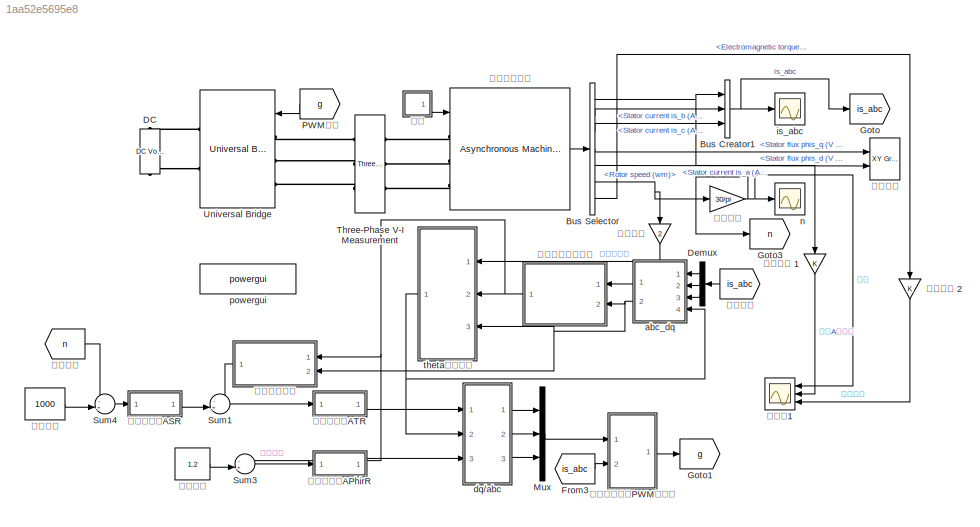
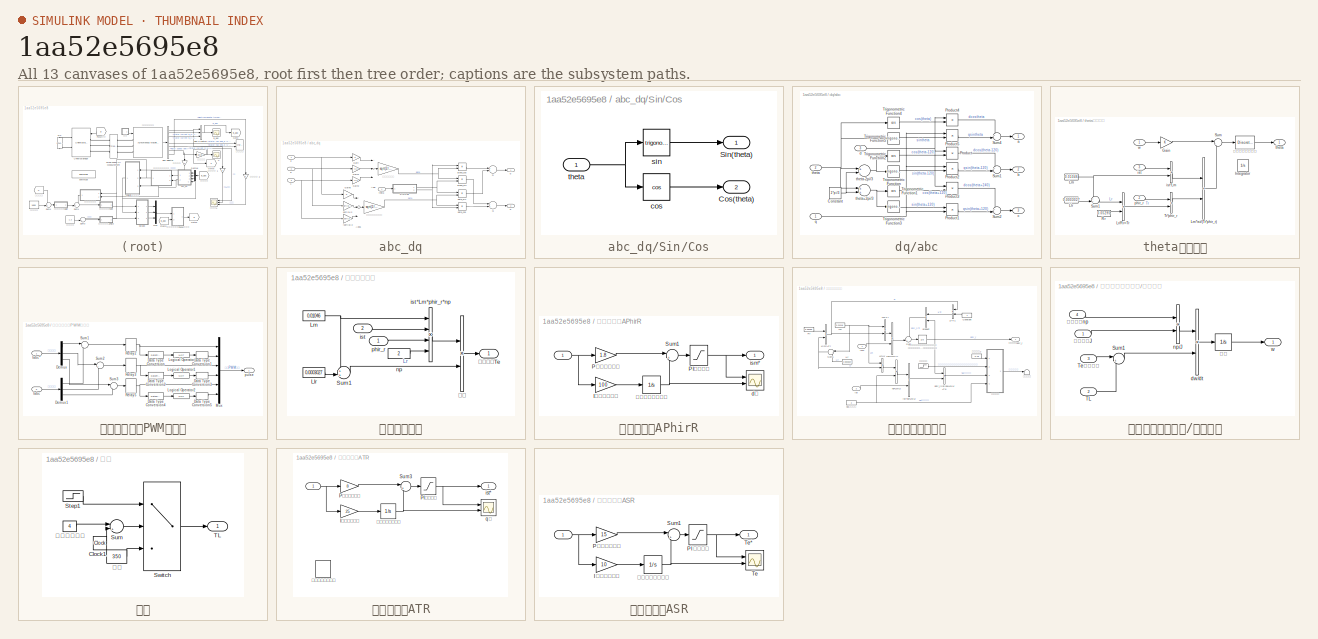
[diagram: thumbnail index - all 13 canvases of the model, root first then tree order]
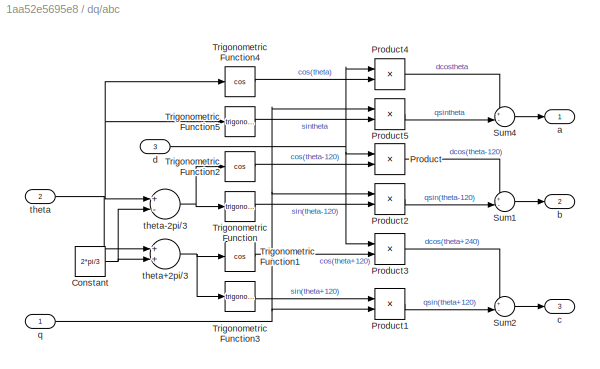
MODEL slx_1aa52e5695e8
KIND model
CONFIG AbsTol = auto
CONFIG EnableMultiTasking = off
CONFIG FixedStep = auto
CONFIG MaxStep = 1e-4
CONFIG MinStep = auto
CONFIG RelTol = 1e-3
CONFIG SampleTimeConstraint = Unconstrained
CONFIG Solver = ode23tb
CONFIG SolverName = ode23tb
CONFIG StartTime = 0.0
CONFIG StopTime = 6
BLOCK [BusCreator] Bus Creator1
  DisplayOption = bar
  InheritFromInputs = on
  Inputs = 3
  Ports = [3, 1]
BLOCK [BusSelector] Bus Selector
  OutputAsBus = off
  OutputSignals = Stator measurements.Stator current is_a (A),Stator measurements.Stator current is_b (A),Stator measurements.Stator current is_c (A),Stator measurements.Stator flux phis_q (V s),Stator measurements.Stator flux phis_d (V s),Mechanical.Rotor speed (wm),Mechanical.Electromagnetic torque Te (N*m)
  Ports = [1, 7]
BLOCK [Reference] DC  REF=powerlib/Electrical
Sources/DC Voltage Source
  Ports = [0, 0, 0, 0, 0, 1, 1]
  SourceBlock = powerlib/Electrical\nSources/DC Voltage Source
  SourceProductBaseCode = PS
  SourceProductName = Simscape Power Systems
  SourceType = DC Voltage Source
BLOCK [Demux] Demux
  DisplayOption = bar
  Outputs = 3
  Ports = [1, 3]
BLOCK [From] From3
  GotoTag = is_abc
BLOCK [Goto] Goto
  GotoTag = is_abc
BLOCK [Goto] Goto1
  GotoTag = g
BLOCK [Goto] Goto3
  GotoTag = n
BLOCK [Mux] Mux
  DisplayOption = bar
  Inputs = 3
  Ports = [3, 1]
BLOCK [From] PWM信号
  GotoTag = g
BLOCK [Sum] Sum1
  IconShape = round
  InputSameDT = off
  Inputs = -+|
  OutDataTypeStr = Inherit: Inherit via internal rule
  Ports = [2, 1]
  SaturateOnIntegerOverflow = off
BLOCK [Sum] Sum3
  IconShape = round
  InputSameDT = off
  Inputs = -+|
  OutDataTypeStr = Inherit: Inherit via internal rule
  Ports = [2, 1]
  SaturateOnIntegerOverflow = off
BLOCK [Sum] Sum4
  IconShape = round
  InputSameDT = off
  Inputs = -+|
  OutDataTypeStr = Inherit: Inherit via internal rule
  Ports = [2, 1]
  SaturateOnIntegerOverflow = off
BLOCK [Reference] Three-Phase V-I Measurement  REF=powerlib/Measurements/Three-Phase
V-I Measurement
  Ports = [0, 0, 0, 0, 0, 3, 3]
  SourceBlock = powerlib/Measurements/Three-Phase\nV-I Measurement
  SourceProductBaseCode = PS
  SourceProductName = Simscape Power Systems
  SourceType = Three-Phase VI Measurement
BLOCK [Reference] Universal Bridge  REF=powerlib/Power
Electronics/Universal Bridge
  Ports = [1, 0, 0, 0, 0, 3, 2]
  SourceBlock = powerlib/Power\nElectronics/Universal Bridge
  SourceProductBaseCode = PS
  SourceProductName = Simscape Power Systems
  SourceType = Universal Bridge
BLOCK [SubSystem] abc_dq
  Ports = [4, 2]
  RequestExecContextInheritance = off
  Variant = off
BLOCK [Gain] abc_dq/-sqrt(3)//2
  Gain = -sqrt(3)/2
  OutDataTypeStr = Inherit: Inherit via internal rule
  ParamDataTypeStr = Inherit: Inherit via internal rule
  SaturateOnIntegerOverflow = off
BLOCK [Sum] abc_dq/Add
  InputSameDT = off
  Inputs = 3
  OutDataTypeStr = Inherit: Inherit via internal rule
  Ports = [3, 1]
  SaturateOnIntegerOverflow = off
BLOCK [Sum] abc_dq/Add1
  InputSameDT = off
  Inputs = 3
  OutDataTypeStr = Inherit: Inherit via internal rule
  Ports = [3, 1]
  SaturateOnIntegerOverflow = off
BLOCK [Sum] abc_dq/D
  InputSameDT = off
  OutDataTypeStr = Inherit: Inherit via internal rule
  Ports = [2, 1]
  SaturateOnIntegerOverflow = off
BLOCK [Gain] abc_dq/Gain
  OutDataTypeStr = Inherit: Inherit via internal rule
  ParamDataTypeStr = Inherit: Inherit via internal rule
  SaturateOnIntegerOverflow = off
BLOCK [Gain] abc_dq/Gain1
  Gain = -0.5
  OutDataTypeStr = Inherit: Inherit via internal rule
  ParamDataTypeStr = Inherit: Inherit via internal rule
  SaturateOnIntegerOverflow = off
BLOCK [Gain] abc_dq/Gain2
  Gain = -0.5
  OutDataTypeStr = Inherit: Inherit via internal rule
  ParamDataTypeStr = Inherit: Inherit via internal rule
  SaturateOnIntegerOverflow = off
BLOCK [Gain] abc_dq/Gain5
  Gain = 0
  OutDataTypeStr = Inherit: Inherit via internal rule
  ParamDataTypeStr = Inherit: Inherit via internal rule
  SaturateOnIntegerOverflow = off
BLOCK [Sum] abc_dq/Q
  InputSameDT = off
  Inputs = -+
  OutDataTypeStr = Inherit: Inherit via internal rule
  Ports = [2, 1]
  SaturateOnIntegerOverflow = off
BLOCK [SubSystem] abc_dq/Sin//Cos
  Ports = [1, 2]
  RequestExecContextInheritance = off
  Variant = off
BLOCK [Outport] abc_dq/Sin//Cos/Cos(theta)
  IconDisplay = Port number
  Port = 2
BLOCK [Outport] abc_dq/Sin//Cos/Sin(theta)
  IconDisplay = Port number
BLOCK [Trigonometry] abc_dq/Sin//Cos/cos
  Operator = cos
  Ports = [1, 1]
BLOCK [Trigonometry] abc_dq/Sin//Cos/sin
  Ports = [1, 1]
BLOCK [Inport] abc_dq/Sin//Cos/theta
  IconDisplay = Port number
BLOCK [Inport] abc_dq/a
  IconDisplay = Port number
BLOCK [Product] abc_dq/alpha_cos
  InputSameDT = off
  OutDataTypeStr = Inherit: Inherit via internal rule
  Ports = [2, 1]
  RndMeth = Floor
  SaturateOnIntegerOverflow = off
BLOCK [Product] abc_dq/alpha_sin
  InputSameDT = off
  OutDataTypeStr = Inherit: Inherit via internal rule
  Ports = [2, 1]
  RndMeth = Floor
  SaturateOnIntegerOverflow = off
BLOCK [Inport] abc_dq/b
  IconDisplay = Port number
  Port = 2
BLOCK [Product] abc_dq/beta_cos
  InputSameDT = off
  OutDataTypeStr = Inherit: Inherit via internal rule
  Ports = [2, 1]
  RndMeth = Floor
  SaturateOnIntegerOverflow = off
BLOCK [Product] abc_dq/beta_sin
  InputSameDT = off
  OutDataTypeStr = Inherit: Inherit via internal rule
  Ports = [2, 1]
  RndMeth = Floor
  SaturateOnIntegerOverflow = off
BLOCK [Inport] abc_dq/c
  IconDisplay = Port number
  Port = 3
BLOCK [Outport] abc_dq/d
  IconDisplay = Port number
BLOCK [Outport] abc_dq/q
  IconDisplay = Port number
  Port = 2
BLOCK [Gain] abc_dq/sqrt(3)//2
  Gain = sqrt(3)/2
  OutDataTypeStr = Inherit: Inherit via internal rule
  ParamDataTypeStr = Inherit: Inherit via internal rule
  SaturateOnIntegerOverflow = off
BLOCK [Inport] abc_dq/theta
  IconDisplay = Port number
  Port = 4
BLOCK [Gain] abc_dq/功率不变保持系数
  Gain = sqrt(2/3)
  OutDataTypeStr = Inherit: Inherit via internal rule
  ParamDataTypeStr = Inherit: Inherit via internal rule
  SaturateOnIntegerOverflow = off
BLOCK [Gain] abc_dq/功率保持系数
  Gain = sqrt(2/3)
  OutDataTypeStr = Inherit: Inherit via internal rule
  ParamDataTypeStr = Inherit: Inherit via internal rule
  SaturateOnIntegerOverflow = off
BLOCK [SubSystem] dq//abc
  Ports = [3, 3]
  RequestExecContextInheritance = off
  Variant = off
BLOCK [Constant] dq//abc/Constant
  Value = 2*pi/3
BLOCK [Product] dq//abc/Product
  InputSameDT = off
  OutDataTypeStr = Inherit: Inherit via internal rule
  Ports = [2, 1]
  RndMeth = Floor
  SaturateOnIntegerOverflow = off
BLOCK [Product] dq//abc/Product1
  InputSameDT = off
  OutDataTypeStr = Inherit: Inherit via internal rule
  Ports = [2, 1]
  RndMeth = Floor
  SaturateOnIntegerOverflow = off
BLOCK [Product] dq//abc/Product2
  InputSameDT = off
  OutDataTypeStr = Inherit: Inherit via internal rule
  Ports = [2, 1]
  RndMeth = Floor
  SaturateOnIntegerOverflow = off
BLOCK [Product] dq//abc/Product3
  InputSameDT = off
  OutDataTypeStr = Inherit: Inherit via internal rule
  Ports = [2, 1]
  RndMeth = Floor
  SaturateOnIntegerOverflow = off
BLOCK [Product] dq//abc/Product4
  InputSameDT = off
  OutDataTypeStr = Inherit: Inherit via internal rule
  Ports = [2, 1]
  RndMeth = Floor
  SaturateOnIntegerOverflow = off
BLOCK [Product] dq//abc/Product5
  InputSameDT = off
  OutDataTypeStr = Inherit: Inherit via internal rule
  Ports = [2, 1]
  RndMeth = Floor
  SaturateOnIntegerOverflow = off
BLOCK [Sum] dq//abc/Sum1
  IconShape = round
  InputSameDT = off
  Inputs = +-|
  OutDataTypeStr = Inherit: Inherit via internal rule
  Ports = [2, 1]
  SaturateOnIntegerOverflow = off
BLOCK [Sum] dq//abc/Sum2
  IconShape = round
  InputSameDT = off
  Inputs = +-|
  OutDataTypeStr = Inherit: Inherit via internal rule
  Ports = [2, 1]
  SaturateOnIntegerOverflow = off
BLOCK [Sum] dq//abc/Sum4
  IconShape = round
  InputSameDT = off
  Inputs = +-|
  OutDataTypeStr = Inherit: Inherit via internal rule
  Ports = [2, 1]
  SaturateOnIntegerOverflow = off
BLOCK [Trigonometry] dq//abc/Trigonometric Function
  Ports = [1, 1]
BLOCK [Trigonometry] dq//abc/Trigonometric Function1
  Operator = cos
  Ports = [1, 1]
BLOCK [Trigonometry] dq//abc/Trigonometric Function2
  Operator = cos
  Ports = [1, 1]
BLOCK [Trigonometry] dq//abc/Trigonometric Function3
  Ports = [1, 1]
BLOCK [Trigonometry] dq//abc/Trigonometric Function4
  Operator = cos
  Ports = [1, 1]
BLOCK [Trigonometry] dq//abc/Trigonometric Function5
  Ports = [1, 1]
BLOCK [Outport] dq//abc/a
  IconDisplay = Port number
BLOCK [Outport] dq//abc/b
  IconDisplay = Port number
  Port = 2
BLOCK [Outport] dq//abc/c
  IconDisplay = Port number
  Port = 3
BLOCK [Inport] dq//abc/d
  IconDisplay = Port number
  Port = 3
BLOCK [Inport] dq//abc/q
  IconDisplay = Port number
BLOCK [Inport] dq//abc/theta
  IconDisplay = Port number
  Port = 2
BLOCK [Sum] dq//abc/theta+2pi//3
  InputSameDT = off
  OutDataTypeStr = Inherit: Inherit via internal rule
  Ports = [2, 1]
  SaturateOnIntegerOverflow = off
BLOCK [Sum] dq//abc/theta-2pi//3
  InputSameDT = off
  Inputs = +-
  OutDataTypeStr = Inherit: Inherit via internal rule
  Ports = [2, 1]
  SaturateOnIntegerOverflow = off
BLOCK [Scope] is_abc
  NumInputPorts = 1
  Ports = [1]
  ScopeSpecificationString = Simulink.scopes.TimeScopeBlockCfg('CurrentConfiguration', extmgr.ConfigurationSet(extmgr.Configuration('Core','General UI',true),extmgr.Configuration('Core','Source UI',true),extmgr.Configuration('Sources','WiredSimulink',true,'DataLoggingVariableName','ScopeData1'),extmgr.Configuration('Visuals','Time Domain',true,'SerializedDisplays',{struct('MinYLimReal','-1877.92315','MaxYLimReal','1877.79007'...<+1557ch>
BLOCK [Scope] n
  NumInputPorts = 1
  Ports = [1]
  ScopeSpecificationString = Simulink.scopes.TimeScopeBlockCfg('CurrentConfiguration', extmgr.ConfigurationSet(extmgr.Configuration('Core','General UI',true,'FigureColor',[1 1 1]),extmgr.Configuration('Core','Source UI',true),extmgr.Configuration('Sources','WiredSimulink',true,'DataLoggingVariableName','ScopeData2'),extmgr.Configuration('Visuals','Time Domain',true,'SerializedDisplays',{struct('MinYLimReal','-129.38086','MaxY...<+1875ch>
BLOCK [Reference] powergui  REF=powerlib/powergui
  Ports = []
  SourceBlock = powerlib/powergui
  SourceProductBaseCode = PS
  SourceProductName = Simscape Power Systems
  SourceType = PSB option menu block
BLOCK [SubSystem] theta计算模型
  Ports = [3, 1]
  RequestExecContextInheritance = off
  Variant = off
BLOCK [Gain] theta计算模型/Gain
  OutDataTypeStr = Inherit: Inherit via internal rule
  ParamDataTypeStr = Inherit: Inherit via internal rule
  SaturateOnIntegerOverflow = off
BLOCK [Integrator] theta计算模型/Integrator
  Ports = [1, 1]
BLOCK [Constant] theta计算模型/Llr
  Value = 0.0003027
BLOCK [Constant] theta计算模型/Lm
  Value = 0.01046
BLOCK [Product] theta计算模型/Lm*ist//(Tr*phir_r)
  InputSameDT = off
  Inputs = */
  OutDataTypeStr = Inherit: Inherit via internal rule
  Ports = [2, 1]
  RndMeth = Floor
  SaturateOnIntegerOverflow = off
BLOCK [Product] theta计算模型/Lr//Rr=Tr
  InputSameDT = off
  Inputs = */
  OutDataTypeStr = Inherit: Inherit via internal rule
  Ports = [2, 1]
  RndMeth = Floor
  SaturateOnIntegerOverflow = off
BLOCK [Constant] theta计算模型/Rr
  Value = 0.05295
BLOCK [Sum] theta计算模型/Sum
  IconShape = round
  InputSameDT = off
  Inputs = |++
  OutDataTypeStr = Inherit: Inherit via internal rule
  Ports = [2, 1]
  SaturateOnIntegerOverflow = off
BLOCK [Sum] theta计算模型/Sum1
  IconShape = round
  InputSameDT = off
  Inputs = ++|
  OutDataTypeStr = Inherit: Inherit via internal rule
  Ports = [2, 1]
  SaturateOnIntegerOverflow = off
BLOCK [Product] theta计算模型/Tr*phir_r
  InputSameDT = off
  OutDataTypeStr = Inherit: Inherit via internal rule
  Ports = [2, 1]
  RndMeth = Floor
  SaturateOnIntegerOverflow = off
BLOCK [Inport] theta计算模型/ist
  IconDisplay = Port number
  Port = 3
BLOCK [Product] theta计算模型/ist*Lm
  InputSameDT = off
  OutDataTypeStr = Inherit: Inherit via internal rule
  Ports = [2, 1]
  RndMeth = Floor
  SaturateOnIntegerOverflow = off
BLOCK [Inport] theta计算模型/phir_r
  IconDisplay = Port number
  Port = 2
BLOCK [Outport] theta计算模型/theta
  IconDisplay = Port number
BLOCK [Inport] theta计算模型/w
  IconDisplay = Port number
BLOCK [DiscreteIntegrator] theta计算模型/带限幅的离散积分
  ICPrevOutput = DiscIntNeverNeededParam
  ICPrevScaledInput = DiscIntNeverNeededParam
  IntegratorMethod = Integration: Trapezoidal
  LimitOutput = on
  LowerSaturationLimit = -3000
  Ports = [1, 1]
  SampleTime = 2e-5
  UpperSaturationLimit = 3000
BLOCK [From] 定子电流
  GotoTag = is_abc
BLOCK [From] 实际转速
  GotoTag = n
BLOCK [Reference] 异步钻井电机  REF=powerlib/Machines/Asynchronous Machine
SI Units
  Ports = [1, 1, 0, 0, 0, 3]
  SourceBlock = powerlib/Machines/Asynchronous Machine\nSI Units
  SourceProductBaseCode = PS
  SourceProductName = Simscape Power Systems
  SourceType = Asynchronous Machine
BLOCK [SubSystem] 电流滞环跟踪PWM发生器
  Ports = [2, 1]
  RequestExecContextInheritance = off
  Variant = off
BLOCK [DataTypeConversion] 电流滞环跟踪PWM发生器/Data Type Conversion
  RndMeth = Floor
  SaturateOnIntegerOverflow = off
BLOCK [DataTypeConversion] 电流滞环跟踪PWM发生器/Data Type Conversion1
  RndMeth = Floor
  SaturateOnIntegerOverflow = off
BLOCK [DataTypeConversion] 电流滞环跟踪PWM发生器/Data Type Conversion2
  RndMeth = Floor
  SaturateOnIntegerOverflow = off
BLOCK [DataTypeConversion] 电流滞环跟踪PWM发生器/Data Type Conversion3
  RndMeth = Floor
  SaturateOnIntegerOverflow = off
BLOCK [DataTypeConversion] 电流滞环跟踪PWM发生器/Data Type Conversion4
  RndMeth = Floor
  SaturateOnIntegerOverflow = off
BLOCK [DataTypeConversion] 电流滞环跟踪PWM发生器/Data Type Conversion5
  RndMeth = Floor
  SaturateOnIntegerOverflow = off
BLOCK [Demux] 电流滞环跟踪PWM发生器/Demux
  DisplayOption = bar
  Outputs = 3
  Ports = [1, 3]
BLOCK [Demux] 电流滞环跟踪PWM发生器/Demux1
  DisplayOption = bar
  Outputs = 3
  Ports = [1, 3]
BLOCK [Inport] 电流滞环跟踪PWM发生器/Iabc
  IconDisplay = Port number
  Port = 2
BLOCK [Inport] 电流滞环跟踪PWM发生器/Iabc*
  IconDisplay = Port number
BLOCK [Logic] 电流滞环跟踪PWM发生器/Logical Operator
  AllPortsSameDT = off
  Inputs = 1
  Operator = NOT
  Ports = [1, 1]
BLOCK [Logic] 电流滞环跟踪PWM发生器/Logical Operator1
  AllPortsSameDT = off
  Inputs = 1
  Operator = NOT
  Ports = [1, 1]
BLOCK [Logic] 电流滞环跟踪PWM发生器/Logical Operator2
  AllPortsSameDT = off
  Inputs = 1
  Operator = NOT
  Ports = [1, 1]
BLOCK [Mux] 电流滞环跟踪PWM发生器/Mux
  DisplayOption = bar
  Inputs = 6
  Ports = [6, 1]
BLOCK [Relay] 电流滞环跟踪PWM发生器/Relay2
  OffSwitchValue = -0.2
  OnSwitchValue = 0.2
  ZeroCross = off
BLOCK [Relay] 电流滞环跟踪PWM发生器/Relay3
  OffSwitchValue = -0.2
  OnSwitchValue = 0.2
  ZeroCross = off
BLOCK [Relay] 电流滞环跟踪PWM发生器/Relay5
  OffSwitchValue = -0.2
  OnSwitchValue = 0.2
  ZeroCross = off
BLOCK [Sum] 电流滞环跟踪PWM发生器/Sum1
  IconShape = round
  InputSameDT = off
  Inputs = |+-
  OutDataTypeStr = Inherit: Inherit via internal rule
  Ports = [2, 1]
  SaturateOnIntegerOverflow = off
BLOCK [Sum] 电流滞环跟踪PWM发生器/Sum2
  IconShape = round
  InputSameDT = off
  Inputs = |+-
  OutDataTypeStr = Inherit: Inherit via internal rule
  Ports = [2, 1]
  SaturateOnIntegerOverflow = off
BLOCK [Sum] 电流滞环跟踪PWM发生器/Sum3
  IconShape = round
  InputSameDT = off
  Inputs = |+-
  OutDataTypeStr = Inherit: Inherit via internal rule
  Ports = [2, 1]
  SaturateOnIntegerOverflow = off
BLOCK [Outport] 电流滞环跟踪PWM发生器/pulse
  IconDisplay = Port number
BLOCK [SubSystem] 电磁转矩计算
  Ports = [2, 1]
  RequestExecContextInheritance = off
  Variant = off
BLOCK [Constant] 电磁转矩计算/Llr
  Value = 0.0003027
BLOCK [Constant] 电磁转矩计算/Lm
  Value = 0.01046
BLOCK [Sum] 电磁转矩计算/Sum1
  IconShape = round
  InputSameDT = off
  Inputs = ++|
  OutDataTypeStr = Inherit: Inherit via internal rule
  Ports = [2, 1]
  SaturateOnIntegerOverflow = off
BLOCK [Inport] 电磁转矩计算/ist
  IconDisplay = Port number
  Port = 2
BLOCK [Product] 电磁转矩计算/ist*Lm*phir_r*np
  InputSameDT = off
  Inputs = 4
  OutDataTypeStr = Inherit: Inherit via internal rule
  Ports = [4, 1]
  RndMeth = Floor
  SaturateOnIntegerOverflow = off
BLOCK [Constant] 电磁转矩计算/np
  Value = 2
BLOCK [Inport] 电磁转矩计算/phir_r
  IconDisplay = Port number
BLOCK [Outport] 电磁转矩计算/电磁转矩Te
  IconDisplay = Port number
BLOCK [Product] 电磁转矩计算/除法
  InputSameDT = off
  Inputs = */
  OutDataTypeStr = Inherit: Inherit via internal rule
  Ports = [2, 1]
  RndMeth = Floor
  SaturateOnIntegerOverflow = off
BLOCK [Reference] 磁链观测  REF=simulink/Sinks/XY Graph
  Ports = [2]
  SourceBlock = simulink/Sinks/XY Graph
  SourceProductBaseCode = SL
  SourceProductName = Simulink
  SourceType = XY scope.
BLOCK [SubSystem] 磁链调节器APhirR
  Ports = [1, 1]
  RequestExecContextInheritance = off
  Variant = off
BLOCK [Inport] 磁链调节器APhirR/ 
  IconDisplay = Port number
BLOCK [Gain] 磁链调节器APhirR/I积分放大倍数
  Gain = 100
  OutDataTypeStr = Inherit: Inherit via internal rule
  ParamDataTypeStr = Inherit: Inherit via internal rule
  SaturateOnIntegerOverflow = off
BLOCK [Saturate] 磁链调节器APhirR/PI输出限幅
  InputPortMap = u0
  LowerLimit = -1300
  Ports = [1, 1]
  UpperLimit = 1300
BLOCK [Gain] 磁链调节器APhirR/P比例放大倍数
  Gain = 1.8
  OutDataTypeStr = Inherit: Inherit via internal rule
  ParamDataTypeStr = Inherit: Inherit via internal rule
  SaturateOnIntegerOverflow = off
BLOCK [Sum] 磁链调节器APhirR/Sum1
  IconShape = round
  InputSameDT = off
  Inputs = |++
  OutDataTypeStr = Inherit: Inherit via internal rule
  Ports = [2, 1]
  SaturateOnIntegerOverflow = off
BLOCK [Scope] 磁链调节器APhirR/d轴
  NumInputPorts = 2
  Ports = [2]
  ScopeSpecificationString = Simulink.scopes.TimeScopeBlockCfg('CurrentConfiguration', extmgr.ConfigurationSet(extmgr.Configuration('Core','General UI',true),extmgr.Configuration('Core','Source UI',true),extmgr.Configuration('Sources','WiredSimulink',true,'DataLoggingVariableName','ScopeData3'),extmgr.Configuration('Visuals','Time Domain',true,'SerializedDisplays',{struct('MinYLimReal','-1.62049','MaxYLimReal','14.58444','YLa...<+1408ch>
BLOCK [Outport] 磁链调节器APhirR/ism*
  IconDisplay = Port number
BLOCK [Integrator] 磁链调节器APhirR/带限幅的连续积分
  LimitOutput = on
  LowerSaturationLimit = -1500
  Ports = [1, 1]
  UpperSaturationLimit = 1500
BLOCK [Scope] 示波器1
  NumInputPorts = 3
  Ports = [3]
  ScopeSpecificationString = Simulink.scopes.TimeScopeBlockCfg('CurrentConfiguration', extmgr.ConfigurationSet(extmgr.Configuration('Core','General UI',true,'FigureColor',[1 1 1]),extmgr.Configuration('Core','Source UI',true),extmgr.Configuration('Sources','WiredSimulink',true,'DataLoggingVariableName','ScopeData3'),extmgr.Configuration('Visuals','Time Domain',true,'SerializedDisplays',{struct('MinYLimReal','-194.24582','MaxY...<+3221ch>
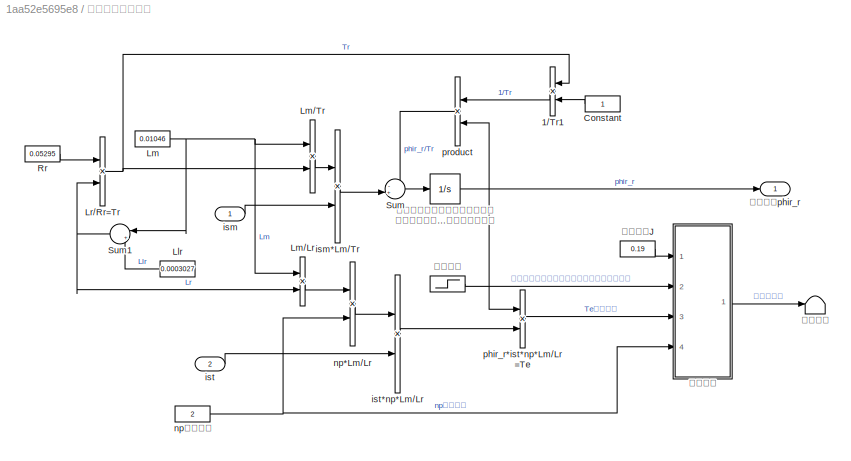
BLOCK [SubSystem] 等效直流电机模型
  Ports = [2, 1]
  RequestExecContextInheritance = off
  Variant = off
BLOCK [Product] 等效直流电机模型/1//Tr1
  InputSameDT = off
  Inputs = /*
  OutDataTypeStr = Inherit: Inherit via internal rule
  Ports = [2, 1]
  RndMeth = Floor
  SaturateOnIntegerOverflow = off
BLOCK [Constant] 等效直流电机模型/Constant
BLOCK [Constant] 等效直流电机模型/Llr
  Value = 0.0003027
BLOCK [Constant] 等效直流电机模型/Lm
  Value = 0.01046
BLOCK [Product] 等效直流电机模型/Lm//Lr
  InputSameDT = off
  Inputs = */
  OutDataTypeStr = Inherit: Inherit via internal rule
  Ports = [2, 1]
  RndMeth = Floor
  SaturateOnIntegerOverflow = off
BLOCK [Product] 等效直流电机模型/Lm//Tr
  InputSameDT = off
  Inputs = */
  OutDataTypeStr = Inherit: Inherit via internal rule
  Ports = [2, 1]
  RndMeth = Floor
  SaturateOnIntegerOverflow = off
BLOCK [Product] 等效直流电机模型/Lr//Rr=Tr
  InputSameDT = off
  Inputs = /*
  OutDataTypeStr = Inherit: Inherit via internal rule
  Ports = [2, 1]
  RndMeth = Floor
  SaturateOnIntegerOverflow = off
BLOCK [Constant] 等效直流电机模型/Rr
  Value = 0.05295
BLOCK [Sum] 等效直流电机模型/Sum
  IconShape = round
  InputSameDT = off
  Inputs = -+|
  OutDataTypeStr = Inherit: Inherit via internal rule
  Ports = [2, 1]
  SaturateOnIntegerOverflow = off
BLOCK [Sum] 等效直流电机模型/Sum1
  IconShape = round
  InputSameDT = off
  Inputs = |++
  OutDataTypeStr = Inherit: Inherit via internal rule
  Ports = [2, 1]
  SaturateOnIntegerOverflow = off
BLOCK [Inport] 等效直流电机模型/ism
  IconDisplay = Port number
BLOCK [Product] 等效直流电机模型/ism*Lm//Tr
  InputSameDT = off
  OutDataTypeStr = Inherit: Inherit via internal rule
  Ports = [2, 1]
  RndMeth = Floor
  SaturateOnIntegerOverflow = off
BLOCK [Inport] 等效直流电机模型/ist
  IconDisplay = Port number
  Port = 2
BLOCK [Product] 等效直流电机模型/ist*np*Lm//Lr
  InputSameDT = off
  OutDataTypeStr = Inherit: Inherit via internal rule
  Ports = [2, 1]
  RndMeth = Floor
  SaturateOnIntegerOverflow = off
BLOCK [Product] 等效直流电机模型/np*Lm//Lr
  InputSameDT = off
  OutDataTypeStr = Inherit: Inherit via internal rule
  Ports = [2, 1]
  RndMeth = Floor
  SaturateOnIntegerOverflow = off
BLOCK [Constant] 等效直流电机模型/np磁极对数
  Value = 2
BLOCK [Product] 等效直流电机模型/phir_r*ist*np*Lm//Lr=Te
  InputSameDT = off
  OutDataTypeStr = Inherit: Inherit via internal rule
  Ports = [2, 1]
  RndMeth = Floor
  SaturateOnIntegerOverflow = off
BLOCK [Product] 等效直流电机模型/product
  InputSameDT = off
  OutDataTypeStr = Inherit: Inherit via internal rule
  Ports = [2, 1]
  RndMeth = Floor
  SaturateOnIntegerOverflow = off
BLOCK [Terminator] 等效直流电机模型/信号终止
BLOCK [Step] 等效直流电机模型/负载转矩
  After = 55
  SampleTime = 0
  Time = 0.6
BLOCK [Constant] 等效直流电机模型/转动惯量J
  Value = 0.19
BLOCK [Outport] 等效直流电机模型/转子磁链phir_r
  IconDisplay = Port number
BLOCK [SubSystem] 等效直流电机模型/运动方程
  Ports = [4, 1]
  RequestExecContextInheritance = off
  Variant = off
BLOCK [Sum] 等效直流电机模型/运动方程/Sum1
  IconShape = round
  InputSameDT = off
  Inputs = |+-
  OutDataTypeStr = Inherit: Inherit via internal rule
  Ports = [2, 1]
  SaturateOnIntegerOverflow = off
BLOCK [Inport] 等效直流电机模型/运动方程/TL
  IconDisplay = Port number
  Port = 2
BLOCK [Inport] 等效直流电机模型/运动方程/Te电磁转矩
  IconDisplay = Port number
  Port = 3
BLOCK [Product] 等效直流电机模型/运动方程/dw//dt
  InputSameDT = off
  OutDataTypeStr = Inherit: Inherit via internal rule
  Ports = [2, 1]
  RndMeth = Floor
  SaturateOnIntegerOverflow = off
BLOCK [Product] 等效直流电机模型/运动方程/np//J
  InputSameDT = off
  Inputs = */
  OutDataTypeStr = Inherit: Inherit via internal rule
  Ports = [2, 1]
  RndMeth = Floor
  SaturateOnIntegerOverflow = off
BLOCK [Outport] 等效直流电机模型/运动方程/w
  IconDisplay = Port number
BLOCK [Inport] 等效直流电机模型/运动方程/磁极对数np
  IconDisplay = Port number
  Port = 4
BLOCK [Integrator] 等效直流电机模型/运动方程/积分
  Ports = [1, 1]
BLOCK [Inport] 等效直流电机模型/运动方程/转动惯量J
  IconDisplay = Port number
BLOCK [Integrator] 等效直流电机模型/（该积分需要给定很小很小的初值不然会无法计算 原因是数学推导中积分起值为0所以一直都为0 所以要能够计算必须给定足够小的起值）
  InitialCondition = 1e-5
  Ports = [1, 1]
BLOCK [Constant] 给定磁链
  Value = 1.2
BLOCK [Constant] 给定转速
  Value = 1000
BLOCK [SubSystem] 负载
  Ports = [0, 1]
  RequestExecContextInheritance = off
  Variant = off
BLOCK [Clock] 负载/Clock1
BLOCK [Step] 负载/Step1
  After = 500
  Before = 200
  SampleTime = 0
  Time = 2
BLOCK [Sum] 负载/Sum
  IconShape = round
  InputSameDT = off
  Inputs = |+-
  OutDataTypeStr = Inherit: Inherit via internal rule
  Ports = [2, 1]
  SaturateOnIntegerOverflow = off
BLOCK [Switch] 负载/Switch
  InputSameDT = off
  SaturateOnIntegerOverflow = off
BLOCK [Outport] 负载/TL
  IconDisplay = Port number
BLOCK [Constant] 负载/负载
  Value = 350
BLOCK [Constant] 负载/负载切换时间
  Value = 4
BLOCK [SubSystem] 转矩调节器ATR
  Ports = [1, 1]
  RequestExecContextInheritance = off
  Variant = off
BLOCK [Inport] 转矩调节器ATR/ 
  IconDisplay = Port number
BLOCK [Gain] 转矩调节器ATR/I积分放大倍数
  Gain = 25
  OutDataTypeStr = Inherit: Inherit via internal rule
  ParamDataTypeStr = Inherit: Inherit via internal rule
  SaturateOnIntegerOverflow = off
BLOCK [Saturate] 转矩调节器ATR/PI输出限幅
  InputPortMap = u0
  LowerLimit = -500
  Ports = [1, 1]
  UpperLimit = 500
BLOCK [Gain] 转矩调节器ATR/P比例放大倍数
  Gain = 8
  OutDataTypeStr = Inherit: Inherit via internal rule
  ParamDataTypeStr = Inherit: Inherit via internal rule
  SaturateOnIntegerOverflow = off
BLOCK [Sum] 转矩调节器ATR/Sum3
  IconShape = round
  InputSameDT = off
  Inputs = |++
  OutDataTypeStr = Inherit: Inherit via internal rule
  Ports = [2, 1]
  SaturateOnIntegerOverflow = off
BLOCK [Outport] 转矩调节器ATR/ist*
  IconDisplay = Port number
BLOCK [Scope] 转矩调节器ATR/q轴 
  NumInputPorts = 2
  Ports = [2]
  ScopeSpecificationString = Simulink.scopes.TimeScopeBlockCfg('CurrentConfiguration', extmgr.ConfigurationSet(extmgr.Configuration('Core','General UI',true),extmgr.Configuration('Core','Source UI',true),extmgr.Configuration('Sources','WiredSimulink',true,'DataLoggingVariableName','ScopeData2'),extmgr.Configuration('Visuals','Time Domain',true,'SerializedDisplays',{struct('MinYLimReal','-126.25','MaxYLimReal','1136.25','YLabe...<+1405ch>
BLOCK [DiscreteIntegrator] 转矩调节器ATR/带限幅的离散积分
  ICPrevOutput = DiscIntNeverNeededParam
  ICPrevScaledInput = DiscIntNeverNeededParam
  Ports = [1, 1]
  SampleTime = 2e-5
BLOCK [Integrator] 转矩调节器ATR/带限幅的连续积分
  LimitOutput = on
  LowerSaturationLimit = -510
  Ports = [1, 1]
  UpperSaturationLimit = 510
BLOCK [SubSystem] 转速调节器ASR
  Ports = [1, 1]
  RequestExecContextInheritance = off
  Variant = off
BLOCK [Inport] 转速调节器ASR/  
  IconDisplay = Port number
BLOCK [Gain] 转速调节器ASR/I积分放大倍数
  Gain = 10
  OutDataTypeStr = Inherit: Inherit via internal rule
  ParamDataTypeStr = Inherit: Inherit via internal rule
  SaturateOnIntegerOverflow = off
BLOCK [Saturate] 转速调节器ASR/PI输出限幅
  InputPortMap = u0
  LowerLimit = -500
  Ports = [1, 1]
  UpperLimit = 500
BLOCK [Gain] 转速调节器ASR/P比例放大倍数
  Gain = 15
  OutDataTypeStr = Inherit: Inherit via internal rule
  ParamDataTypeStr = Inherit: Inherit via internal rule
  SaturateOnIntegerOverflow = off
BLOCK [Sum] 转速调节器ASR/Sum1
  IconShape = round
  InputSameDT = off
  Inputs = |++
  OutDataTypeStr = Inherit: Inherit via internal rule
  Ports = [2, 1]
  SaturateOnIntegerOverflow = off
BLOCK [Scope] 转速调节器ASR/Te
  NumInputPorts = 2
  Ports = [2]
  ScopeSpecificationString = Simulink.scopes.TimeScopeBlockCfg('CurrentConfiguration', extmgr.ConfigurationSet(extmgr.Configuration('Core','General UI',true),extmgr.Configuration('Core','Source UI',true),extmgr.Configuration('Sources','WiredSimulink',true,'DataLoggingVariableName','ScopeData1'),extmgr.Configuration('Visuals','Time Domain',true,'SerializedDisplays',{struct('MinYLimReal','-314.98142','MaxYLimReal','1701.6646','...<+1461ch>
BLOCK [Outport] 转速调节器ASR/Te*
  IconDisplay = Port number
BLOCK [Integrator] 转速调节器ASR/带限幅的连续积分
  LimitOutput = on
  LowerSaturationLimit = -510
  Ports = [1, 1]
  UpperSaturationLimit = 510
BLOCK [Gain] 转速转换
  Gain = 30/pi
  OutDataTypeStr = Inherit: Inherit via internal rule
  ParamDataTypeStr = Inherit: Inherit via internal rule
  SaturateOnIntegerOverflow = off
BLOCK [Gain] 转速转换 
  Gain = 2
  OutDataTypeStr = Inherit: Inherit via internal rule
  ParamDataTypeStr = Inherit: Inherit via internal rule
  SaturateOnIntegerOverflow = off
BLOCK [Gain] 转速转换 1
  OutDataTypeStr = Inherit: Inherit via internal rule
  ParamDataTypeStr = Inherit: Inherit via internal rule
  SaturateOnIntegerOverflow = off
BLOCK [Gain] 转速转换 2
  OutDataTypeStr = Inherit: Inherit via internal rule
  ParamDataTypeStr = Inherit: Inherit via internal rule
  SaturateOnIntegerOverflow = off
NET Bus Creator1:1 -> Goto:1, is_abc:1
NET Bus Selector:1 -> Bus Creator1:1, 转速转换 1:1
LINE Bus Selector:2 -> Bus Creator1:2
LINE Bus Selector:3 -> Bus Creator1:3
LINE Bus Selector:4 -> 磁链观测:1
LINE Bus Selector:5 -> 磁链观测:2
NET Bus Selector:6 -> 转速转换 :1, 转速转换:1
LINE Bus Selector:7 -> 转速转换 2:1
LINE Demux:1 -> abc_dq:1
LINE Demux:2 -> abc_dq:2
LINE Demux:3 -> abc_dq:3
LINE From3:1 -> 电流滞环跟踪PWM发生器:2
LINE Mux:1 -> 电流滞环跟踪PWM发生器:1
LINE PWM信号:1 -> Universal Bridge:1
LINE Sum1:1 -> 转矩调节器ATR:1
LINE Sum3:1 -> 磁链调节器APhirR:1
LINE Sum4:1 -> 转速调节器ASR:1
LINE abc_dq/-sqrt(3)//2:1 -> abc_dq/Add1:3
LINE abc_dq/Add1:1 -> abc_dq/功率不变保持系数:1
LINE abc_dq/Add:1 -> abc_dq/功率保持系数:1
LINE abc_dq/D:1 -> abc_dq/d:1
LINE abc_dq/Gain1:1 -> abc_dq/Add:2
LINE abc_dq/Gain2:1 -> abc_dq/Add:3
LINE abc_dq/Gain5:1 -> abc_dq/Add1:1
LINE abc_dq/Gain:1 -> abc_dq/Add:1
LINE abc_dq/Q:1 -> abc_dq/q:1
LINE abc_dq/Sin//Cos/cos:1 -> abc_dq/Sin//Cos/Cos(theta):1
LINE abc_dq/Sin//Cos/sin:1 -> abc_dq/Sin//Cos/Sin(theta):1
NET abc_dq/Sin//Cos/theta:1 -> abc_dq/Sin//Cos/cos:1, abc_dq/Sin//Cos/sin:1
NET abc_dq/Sin//Cos:1 -> abc_dq/alpha_sin:2, abc_dq/beta_sin:1
NET abc_dq/Sin//Cos:2 -> abc_dq/alpha_cos:1, abc_dq/beta_cos:2
NET abc_dq/a:1 -> abc_dq/Gain5:1, abc_dq/Gain:1
LINE abc_dq/alpha_cos:1 -> abc_dq/D:1
LINE abc_dq/alpha_sin:1 -> abc_dq/Q:1
NET abc_dq/b:1 -> abc_dq/Gain1:1, abc_dq/sqrt(3)//2:1
LINE abc_dq/beta_cos:1 -> abc_dq/Q:2
LINE abc_dq/beta_sin:1 -> abc_dq/D:2
NET abc_dq/c:1 -> abc_dq/-sqrt(3)//2:1, abc_dq/Gain2:1
LINE abc_dq/sqrt(3)//2:1 -> abc_dq/Add1:2
LINE abc_dq/theta:1 -> abc_dq/Sin//Cos:1
NET abc_dq/功率不变保持系数:1 -> abc_dq/beta_cos:1, abc_dq/beta_sin:2
NET abc_dq/功率保持系数:1 -> abc_dq/alpha_cos:2, abc_dq/alpha_sin:1
LINE abc_dq:1 -> 等效直流电机模型:1
NET abc_dq:2 -> theta计算模型:3, 电磁转矩计算:2, 等效直流电机模型:2
NET dq//abc/Constant:1 -> dq//abc/theta+2pi//3:2, dq//abc/theta-2pi//3:2
LINE dq//abc/Product1:1 -> dq//abc/Sum2:2
LINE dq//abc/Product2:1 -> dq//abc/Sum1:2
LINE dq//abc/Product3:1 -> dq//abc/Sum2:1
LINE dq//abc/Product4:1 -> dq//abc/Sum4:1
LINE dq//abc/Product5:1 -> dq//abc/Sum4:2
LINE dq//abc/Product:1 -> dq//abc/Sum1:1
LINE dq//abc/Sum1:1 -> dq//abc/b:1
LINE dq//abc/Sum2:1 -> dq//abc/c:1
LINE dq//abc/Sum4:1 -> dq//abc/a:1
LINE dq//abc/Trigonometric Function1:1 -> dq//abc/Product3:2
LINE dq//abc/Trigonometric Function2:1 -> dq//abc/Product:2
LINE dq//abc/Trigonometric Function3:1 -> dq//abc/Product1:1
LINE dq//abc/Trigonometric Function4:1 -> dq//abc/Product4:2
LINE dq//abc/Trigonometric Function5:1 -> dq//abc/Product5:2
LINE dq//abc/Trigonometric Function:1 -> dq//abc/Product2:2
NET dq//abc/d:1 -> dq//abc/Product3:1, dq//abc/Product4:1, dq//abc/Product:1
NET dq//abc/q:1 -> dq//abc/Product1:2, dq//abc/Product2:1, dq//abc/Product5:1
NET dq//abc/theta+2pi//3:1 -> dq//abc/Trigonometric Function1:1, dq//abc/Trigonometric Function3:1
NET dq//abc/theta-2pi//3:1 -> dq//abc/Trigonometric Function2:1, dq//abc/Trigonometric Function:1
NET dq//abc/theta:1 -> dq//abc/Trigonometric Function4:1, dq//abc/Trigonometric Function5:1, dq//abc/theta+2pi//3:1, dq//abc/theta-2pi//3:1
LINE dq//abc:1 -> Mux:1
LINE dq//abc:2 -> Mux:2
LINE dq//abc:3 -> Mux:3
LINE theta计算模型/Gain:1 -> theta计算模型/Sum:1
LINE theta计算模型/Llr:1 -> theta计算模型/Sum1:2
LINE theta计算模型/Lm*ist//(Tr*phir_r):1 -> theta计算模型/Sum:2
NET theta计算模型/Lm:1 -> theta计算模型/Sum1:1, theta计算模型/ist*Lm:2
LINE theta计算模型/Lr//Rr=Tr:1 -> theta计算模型/Tr*phir_r:2
LINE theta计算模型/Rr:1 -> theta计算模型/Lr//Rr=Tr:2
LINE theta计算模型/Sum1:1 -> theta计算模型/Lr//Rr=Tr:1
LINE theta计算模型/Sum:1 -> theta计算模型/带限幅的离散积分:1
LINE theta计算模型/Tr*phir_r:1 -> theta计算模型/Lm*ist//(Tr*phir_r):2
LINE theta计算模型/ist*Lm:1 -> theta计算模型/Lm*ist//(Tr*phir_r):1
LINE theta计算模型/ist:1 -> theta计算模型/ist*Lm:1
LINE theta计算模型/phir_r:1 -> theta计算模型/Tr*phir_r:1
LINE theta计算模型/w:1 -> theta计算模型/Gain:1
LINE theta计算模型/带限幅的离散积分:1 -> theta计算模型/theta:1
NET theta计算模型:1 -> abc_dq:4, dq//abc:2
LINE 定子电流:1 -> Demux:1
LINE 实际转速:1 -> Sum4:1
LINE 异步钻井电机:1 -> Bus Selector:1
LINE 电流滞环跟踪PWM发生器/Data Type Conversion1:1 -> 电流滞环跟踪PWM发生器/Mux:2
LINE 电流滞环跟踪PWM发生器/Data Type Conversion2:1 -> 电流滞环跟踪PWM发生器/Logical Operator1:1
LINE 电流滞环跟踪PWM发生器/Data Type Conversion3:1 -> 电流滞环跟踪PWM发生器/Mux:4
LINE 电流滞环跟踪PWM发生器/Data Type Conversion4:1 -> 电流滞环跟踪PWM发生器/Logical Operator2:1
LINE 电流滞环跟踪PWM发生器/Data Type Conversion5:1 -> 电流滞环跟踪PWM发生器/Mux:6
LINE 电流滞环跟踪PWM发生器/Data Type Conversion:1 -> 电流滞环跟踪PWM发生器/Logical Operator:1
LINE 电流滞环跟踪PWM发生器/Demux1:1 -> 电流滞环跟踪PWM发生器/Sum1:2
LINE 电流滞环跟踪PWM发生器/Demux1:2 -> 电流滞环跟踪PWM发生器/Sum2:2
LINE 电流滞环跟踪PWM发生器/Demux1:3 -> 电流滞环跟踪PWM发生器/Sum3:2
LINE 电流滞环跟踪PWM发生器/Demux:1 -> 电流滞环跟踪PWM发生器/Sum1:1
LINE 电流滞环跟踪PWM发生器/Demux:2 -> 电流滞环跟踪PWM发生器/Sum2:1
LINE 电流滞环跟踪PWM发生器/Demux:3 -> 电流滞环跟踪PWM发生器/Sum3:1
LINE 电流滞环跟踪PWM发生器/Iabc*:1 -> 电流滞环跟踪PWM发生器/Demux:1
LINE 电流滞环跟踪PWM发生器/Iabc:1 -> 电流滞环跟踪PWM发生器/Demux1:1
LINE 电流滞环跟踪PWM发生器/Logical Operator1:1 -> 电流滞环跟踪PWM发生器/Data Type Conversion3:1
LINE 电流滞环跟踪PWM发生器/Logical Operator2:1 -> 电流滞环跟踪PWM发生器/Data Type Conversion5:1
LINE 电流滞环跟踪PWM发生器/Logical Operator:1 -> 电流滞环跟踪PWM发生器/Data Type Conversion1:1
LINE 电流滞环跟踪PWM发生器/Mux:1 -> 电流滞环跟踪PWM发生器/pulse:1
NET 电流滞环跟踪PWM发生器/Relay2:1 -> 电流滞环跟踪PWM发生器/Data Type Conversion:1, 电流滞环跟踪PWM发生器/Mux:1
NET 电流滞环跟踪PWM发生器/Relay3:1 -> 电流滞环跟踪PWM发生器/Data Type Conversion2:1, 电流滞环跟踪PWM发生器/Mux:3
NET 电流滞环跟踪PWM发生器/Relay5:1 -> 电流滞环跟踪PWM发生器/Data Type Conversion4:1, 电流滞环跟踪PWM发生器/Mux:5
LINE 电流滞环跟踪PWM发生器/Sum1:1 -> 电流滞环跟踪PWM发生器/Relay2:1
LINE 电流滞环跟踪PWM发生器/Sum2:1 -> 电流滞环跟踪PWM发生器/Relay3:1
LINE 电流滞环跟踪PWM发生器/Sum3:1 -> 电流滞环跟踪PWM发生器/Relay5:1
LINE 电流滞环跟踪PWM发生器:1 -> Goto1:1
LINE 电磁转矩计算/Llr:1 -> 电磁转矩计算/Sum1:2
NET 电磁转矩计算/Lm:1 -> 电磁转矩计算/Sum1:1, 电磁转矩计算/ist*Lm*phir_r*np:1
LINE 电磁转矩计算/Sum1:1 -> 电磁转矩计算/除法:2
LINE 电磁转矩计算/ist*Lm*phir_r*np:1 -> 电磁转矩计算/除法:1
LINE 电磁转矩计算/ist:1 -> 电磁转矩计算/ist*Lm*phir_r*np:2
LINE 电磁转矩计算/np:1 -> 电磁转矩计算/ist*Lm*phir_r*np:4
LINE 电磁转矩计算/phir_r:1 -> 电磁转矩计算/ist*Lm*phir_r*np:3
LINE 电磁转矩计算/除法:1 -> 电磁转矩计算/电磁转矩Te:1
LINE 电磁转矩计算:1 -> Sum1:1
NET 磁链调节器APhirR/ :1 -> 磁链调节器APhirR/I积分放大倍数:1, 磁链调节器APhirR/P比例放大倍数:1
LINE 磁链调节器APhirR/I积分放大倍数:1 -> 磁链调节器APhirR/带限幅的连续积分:1
NET 磁链调节器APhirR/PI输出限幅:1 -> 磁链调节器APhirR/d轴:1, 磁链调节器APhirR/ism*:1
LINE 磁链调节器APhirR/P比例放大倍数:1 -> 磁链调节器APhirR/Sum1:1
LINE 磁链调节器APhirR/Sum1:1 -> 磁链调节器APhirR/PI输出限幅:1
NET 磁链调节器APhirR/带限幅的连续积分:1 -> 磁链调节器APhirR/Sum1:2, 磁链调节器APhirR/d轴:2
LINE 磁链调节器APhirR:1 -> dq//abc:3
LINE 等效直流电机模型/1//Tr1:1 -> 等效直流电机模型/product:1
LINE 等效直流电机模型/Constant:1 -> 等效直流电机模型/1//Tr1:2
LINE 等效直流电机模型/Llr:1 -> 等效直流电机模型/Sum1:2
LINE 等效直流电机模型/Lm//Lr:1 -> 等效直流电机模型/np*Lm//Lr:1
LINE 等效直流电机模型/Lm//Tr:1 -> 等效直流电机模型/ism*Lm//Tr:1
NET 等效直流电机模型/Lm:1 -> 等效直流电机模型/Lm//Lr:1, 等效直流电机模型/Lm//Tr:1, 等效直流电机模型/Sum1:1
NET 等效直流电机模型/Lr//Rr=Tr:1 -> 等效直流电机模型/1//Tr1:1, 等效直流电机模型/Lm//Tr:2
LINE 等效直流电机模型/Rr:1 -> 等效直流电机模型/Lr//Rr=Tr:1
NET 等效直流电机模型/Sum1:1 -> 等效直流电机模型/Lm//Lr:2, 等效直流电机模型/Lr//Rr=Tr:2
LINE 等效直流电机模型/Sum:1 -> 等效直流电机模型/（该积分需要给定很小很小的初值不然会无法计算 原因是数学推导中积分起值为0所以一直都为0 所以要能够计算必须给定足够小的起值）:1
LINE 等效直流电机模型/ism*Lm//Tr:1 -> 等效直流电机模型/Sum:2
LINE 等效直流电机模型/ism:1 -> 等效直流电机模型/ism*Lm//Tr:2
LINE 等效直流电机模型/ist*np*Lm//Lr:1 -> 等效直流电机模型/phir_r*ist*np*Lm//Lr=Te:2
LINE 等效直流电机模型/ist:1 -> 等效直流电机模型/ist*np*Lm//Lr:2
LINE 等效直流电机模型/np*Lm//Lr:1 -> 等效直流电机模型/ist*np*Lm//Lr:1
NET 等效直流电机模型/np磁极对数:1 -> 等效直流电机模型/np*Lm//Lr:2, 等效直流电机模型/运动方程:4
LINE 等效直流电机模型/phir_r*ist*np*Lm//Lr=Te:1 -> 等效直流电机模型/运动方程:3
LINE 等效直流电机模型/product:1 -> 等效直流电机模型/Sum:1
LINE 等效直流电机模型/负载转矩:1 -> 等效直流电机模型/运动方程:2
LINE 等效直流电机模型/转动惯量J:1 -> 等效直流电机模型/运动方程:1
LINE 等效直流电机模型/运动方程/Sum1:1 -> 等效直流电机模型/运动方程/dw//dt:2
LINE 等效直流电机模型/运动方程/TL:1 -> 等效直流电机模型/运动方程/Sum1:2
LINE 等效直流电机模型/运动方程/Te电磁转矩:1 -> 等效直流电机模型/运动方程/Sum1:1
LINE 等效直流电机模型/运动方程/dw//dt:1 -> 等效直流电机模型/运动方程/积分:1
LINE 等效直流电机模型/运动方程/np//J:1 -> 等效直流电机模型/运动方程/dw//dt:1
LINE 等效直流电机模型/运动方程/磁极对数np:1 -> 等效直流电机模型/运动方程/np//J:1
LINE 等效直流电机模型/运动方程/积分:1 -> 等效直流电机模型/运动方程/w:1
LINE 等效直流电机模型/运动方程/转动惯量J:1 -> 等效直流电机模型/运动方程/np//J:2
LINE 等效直流电机模型/运动方程:1 -> 等效直流电机模型/信号终止:1
NET 等效直流电机模型/（该积分需要给定很小很小的初值不然会无法计算 原因是数学推导中积分起值为0所以一直都为0 所以要能够计算必须给定足够小的起值）:1 -> 等效直流电机模型/phir_r*ist*np*Lm//Lr=Te:1, 等效直流电机模型/product:2, 等效直流电机模型/转子磁链phir_r:1
NET 等效直流电机模型:1 -> Sum3:1, theta计算模型:2, 电磁转矩计算:1
LINE 给定磁链:1 -> Sum3:2
LINE 给定转速:1 -> Sum4:2
LINE 负载/Clock1:1 -> 负载/Sum:2
LINE 负载/Step1:1 -> 负载/Switch:1
LINE 负载/Sum:1 -> 负载/Switch:2
LINE 负载/Switch:1 -> 负载/TL:1
LINE 负载/负载:1 -> 负载/Switch:3
LINE 负载/负载切换时间:1 -> 负载/Sum:1
LINE 负载:1 -> 异步钻井电机:1
NET 转矩调节器ATR/ :1 -> 转矩调节器ATR/I积分放大倍数:1, 转矩调节器ATR/P比例放大倍数:1
LINE 转矩调节器ATR/I积分放大倍数:1 -> 转矩调节器ATR/带限幅的连续积分:1
NET 转矩调节器ATR/PI输出限幅:1 -> 转矩调节器ATR/ist*:1, 转矩调节器ATR/q轴 :1
LINE 转矩调节器ATR/P比例放大倍数:1 -> 转矩调节器ATR/Sum3:1
LINE 转矩调节器ATR/Sum3:1 -> 转矩调节器ATR/PI输出限幅:1
NET 转矩调节器ATR/带限幅的连续积分:1 -> 转矩调节器ATR/Sum3:2, 转矩调节器ATR/q轴 :2
LINE 转矩调节器ATR:1 -> dq//abc:1
NET 转速调节器ASR/  :1 -> 转速调节器ASR/I积分放大倍数:1, 转速调节器ASR/P比例放大倍数:1
LINE 转速调节器ASR/I积分放大倍数:1 -> 转速调节器ASR/带限幅的连续积分:1
NET 转速调节器ASR/PI输出限幅:1 -> 转速调节器ASR/Te*:1, 转速调节器ASR/Te:1
LINE 转速调节器ASR/P比例放大倍数:1 -> 转速调节器ASR/Sum1:1
LINE 转速调节器ASR/Sum1:1 -> 转速调节器ASR/PI输出限幅:1
NET 转速调节器ASR/带限幅的连续积分:1 -> 转速调节器ASR/Sum1:2, 转速调节器ASR/Te:2
LINE 转速调节器ASR:1 -> Sum1:2
LINE 转速转换 1:1 -> 示波器1:2
LINE 转速转换 2:1 -> 示波器1:3
LINE 转速转换 :1 -> theta计算模型:1
NET 转速转换:1 -> Goto3:1, n:1, 示波器1:1
PLINE DC:LConn1 -- Universal Bridge:RConn2
PLINE DC:RConn1 -- Universal Bridge:RConn1
PLINE Three-Phase V-I Measurement:LConn1 -- Universal Bridge:LConn1
PLINE Three-Phase V-I Measurement:LConn2 -- Universal Bridge:LConn2
PLINE Three-Phase V-I Measurement:LConn3 -- Universal Bridge:LConn3
PLINE Three-Phase V-I Measurement:RConn1 -- 异步钻井电机:LConn1
PLINE Three-Phase V-I Measurement:RConn2 -- 异步钻井电机:LConn2
PLINE Three-Phase V-I Measurement:RConn3 -- 异步钻井电机:LConn3
note: NET lines group one-source signal fan-out (src -> all destinations, sorted); 1:1 wires keep LINE
